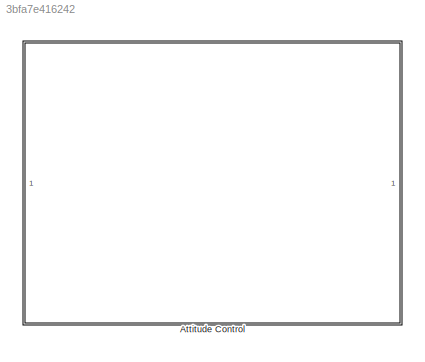
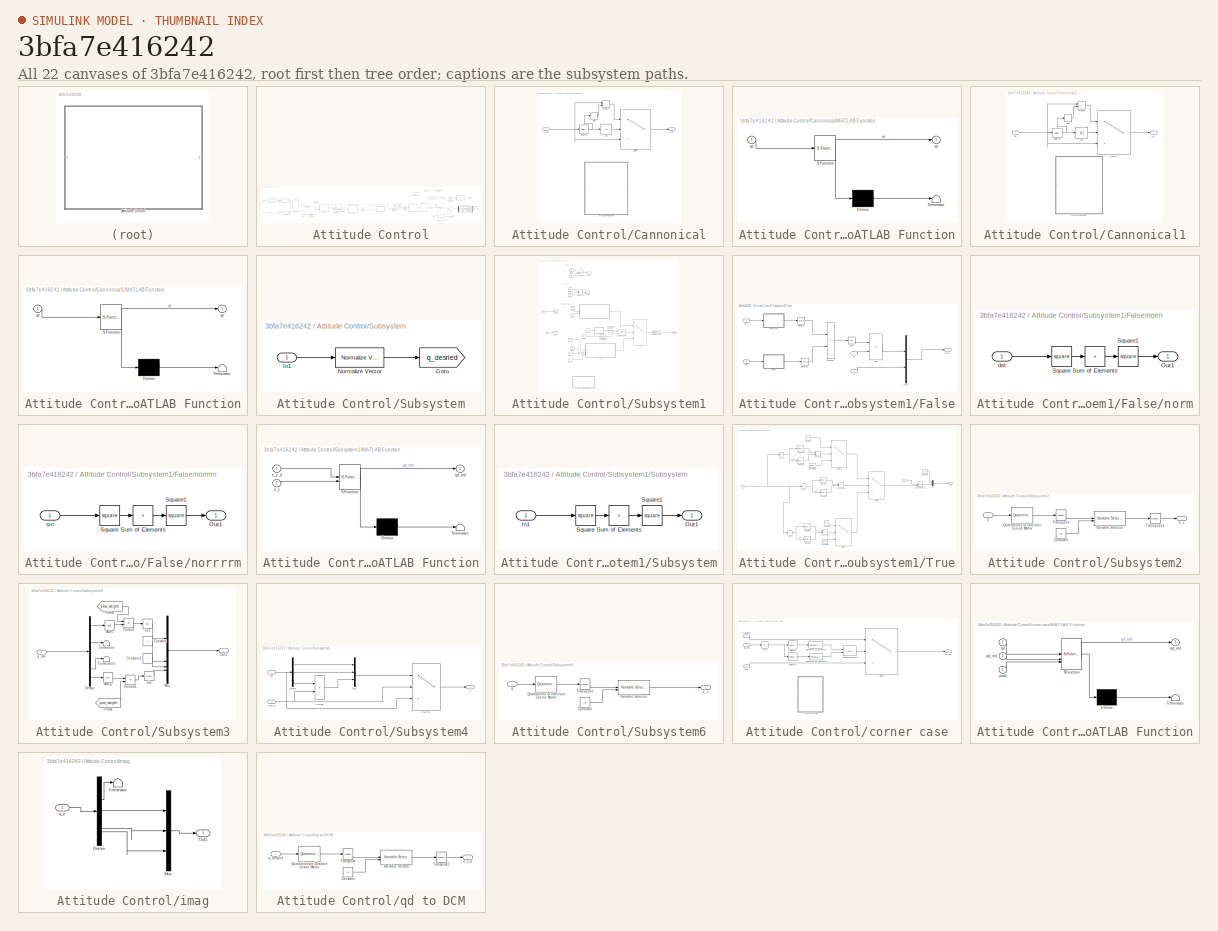
[diagram: thumbnail index - all 22 canvases of the model, root first then tree order]
MODEL slx_3bfa7e416242
KIND model
CONFIG AbsTol = auto
CONFIG EnableMultiTasking = off
CONFIG FixedStep = auto
CONFIG MaxStep = auto
CONFIG MinStep = auto
CONFIG RelTol = 1e-3
CONFIG SampleTimeConstraint = Unconstrained
CONFIG SolverName = VariableStepAuto
CONFIG StartTime = 0.0
CONFIG StopTime = 10.0
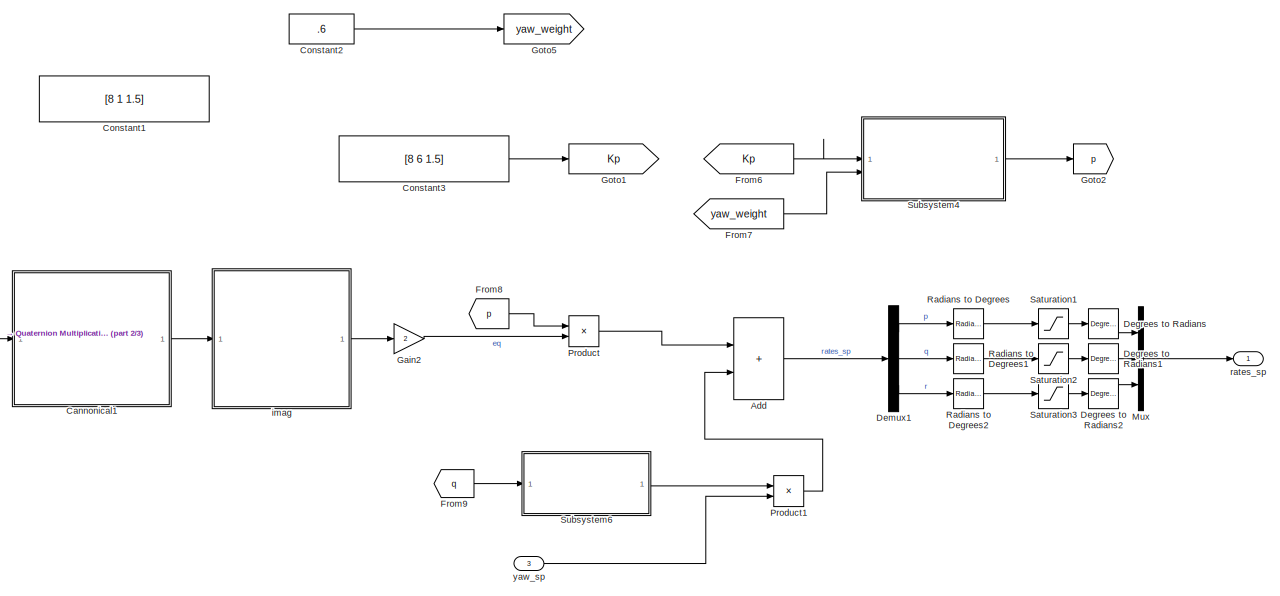
[diagram: Attitude Control - part 1/3, right side, full height]
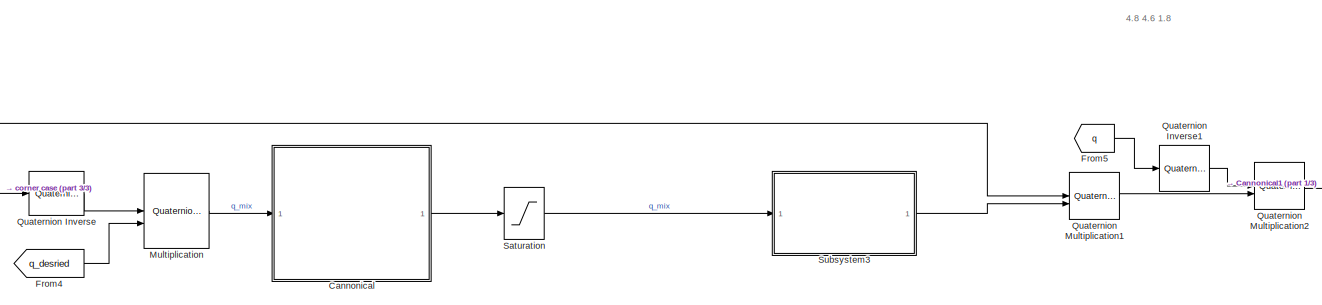
[diagram: Attitude Control - part 2/3, central region]
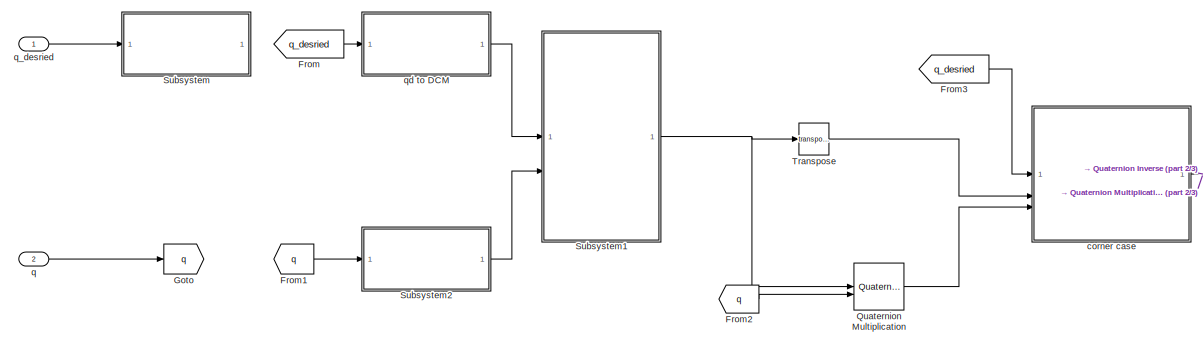
[diagram: Attitude Control - part 3/3, middle left region]
BLOCK [SubSystem] Attitude Control
BLOCK [Sum] Attitude Control/Add
  IconShape = rectangular
BLOCK [SubSystem] Attitude Control/Cannonical
BLOCK [Abs] Attitude Control/Cannonical/Abs
  SaturateOnIntegerOverflow = off
BLOCK [SubSystem] Attitude Control/Cannonical/MATLAB Function
  Commented = on
  ErrorFcn = Stateflow.Translate.translate
  PermitHierarchicalResolution = ExplicitOnly
  SFBlockType = MATLAB Function
  TreatAsAtomicUnit = on
BLOCK [Demux] Attitude Control/Cannonical/MATLAB Function/ Demux 
  Outputs = 1
BLOCK [S-Function] Attitude Control/Cannonical/MATLAB Function/ SFunction 
  EnableBusSupport = off
  FunctionName = sf_sfun
  PortCounts = [1 2]
  SFcnIsStateOwnerBlock = off
  SFunctionDeploymentMode = off
  Tag = Stateflow S-Function 8
BLOCK [Terminator] Attitude Control/Cannonical/MATLAB Function/ Terminator 
BLOCK [Outport] Attitude Control/Cannonical/MATLAB Function/qe
BLOCK [Inport] Attitude Control/Cannonical/MATLAB Function/qe 
BLOCK [Outport] Attitude Control/Cannonical/Out1
BLOCK [Product] Attitude Control/Cannonical/Product
BLOCK [Selector] Attitude Control/Cannonical/Selector
  IndexOptions = Index vector (dialog)
  Indices = [1]
  InputPortWidth = 4
  OutputSizes = 1
BLOCK [Signum] Attitude Control/Cannonical/Sign
BLOCK [Switch] Attitude Control/Cannonical/Switch
  Criteria = u2 > Threshold
  InputSameDT = off
  SaturateOnIntegerOverflow = off
  Threshold = 1e-5
BLOCK [Inport] Attitude Control/Cannonical/q_mix 
BLOCK [SubSystem] Attitude Control/Cannonical1
BLOCK [Abs] Attitude Control/Cannonical1/Abs
  SaturateOnIntegerOverflow = off
BLOCK [SubSystem] Attitude Control/Cannonical1/MATLAB Function
  Commented = on
  ErrorFcn = Stateflow.Translate.translate
  PermitHierarchicalResolution = ExplicitOnly
  SFBlockType = MATLAB Function
  TreatAsAtomicUnit = on
BLOCK [Demux] Attitude Control/Cannonical1/MATLAB Function/ Demux 
  Outputs = 1
BLOCK [S-Function] Attitude Control/Cannonical1/MATLAB Function/ SFunction 
  EnableBusSupport = off
  FunctionName = sf_sfun
  PortCounts = [1 2]
  SFcnIsStateOwnerBlock = off
  SFunctionDeploymentMode = off
  Tag = Stateflow S-Function 7
BLOCK [Terminator] Attitude Control/Cannonical1/MATLAB Function/ Terminator 
BLOCK [Outport] Attitude Control/Cannonical1/MATLAB Function/qe
BLOCK [Inport] Attitude Control/Cannonical1/MATLAB Function/qe 
BLOCK [Product] Attitude Control/Cannonical1/Product
BLOCK [Selector] Attitude Control/Cannonical1/Selector
  IndexOptions = Index vector (dialog)
  Indices = [1]
  InputPortWidth = 4
  OutputSizes = 1
BLOCK [Signum] Attitude Control/Cannonical1/Sign
BLOCK [Switch] Attitude Control/Cannonical1/Switch
  Criteria = u2 > Threshold
  InputSameDT = off
  SaturateOnIntegerOverflow = off
  Threshold = 1e-5
BLOCK [Outport] Attitude Control/Cannonical1/q_e
BLOCK [Inport] Attitude Control/Cannonical1/qe 
BLOCK [Constant] Attitude Control/Constant1
  Value = [8 1 1.5]
BLOCK [Constant] Attitude Control/Constant2
  Value = .6
BLOCK [Constant] Attitude Control/Constant3
  Value = [8 6 1.5]
BLOCK [Reference] Attitude Control/Degrees to Radians  REF=simulink_extras/Transformations/Degrees to
Radians
  SourceBlock = simulink_extras/Transformations/Degrees to\nRadians
  SourceType = DegreesToRadians
BLOCK [Reference] Attitude Control/Degrees to Radians1  REF=simulink_extras/Transformations/Degrees to
Radians
  SourceBlock = simulink_extras/Transformations/Degrees to\nRadians
  SourceType = DegreesToRadians
BLOCK [Reference] Attitude Control/Degrees to Radians2  REF=simulink_extras/Transformations/Degrees to
Radians
  SourceBlock = simulink_extras/Transformations/Degrees to\nRadians
  SourceType = DegreesToRadians
BLOCK [Demux] Attitude Control/Demux1
  Outputs = 3
BLOCK [From] Attitude Control/From
  GotoTag = q_desried
  TagVisibility = global
BLOCK [From] Attitude Control/From1
  GotoTag = q
  TagVisibility = global
BLOCK [From] Attitude Control/From2
  GotoTag = q
  TagVisibility = global
BLOCK [From] Attitude Control/From3
  GotoTag = q_desried
  TagVisibility = global
BLOCK [From] Attitude Control/From4
  GotoTag = q_desried
  TagVisibility = global
BLOCK [From] Attitude Control/From5
  GotoTag = q
  TagVisibility = global
BLOCK [From] Attitude Control/From6
  GotoTag = Kp
BLOCK [From] Attitude Control/From7
  GotoTag = yaw_weight
  TagVisibility = global
BLOCK [From] Attitude Control/From8
  GotoTag = p
BLOCK [From] Attitude Control/From9
  GotoTag = q
  TagVisibility = global
BLOCK [Gain] Attitude Control/Gain2
  Gain = 2
BLOCK [Goto] Attitude Control/Goto
  GotoTag = q
  TagVisibility = global
BLOCK [Goto] Attitude Control/Goto1
  GotoTag = Kp
BLOCK [Goto] Attitude Control/Goto2
  GotoTag = p
BLOCK [Goto] Attitude Control/Goto5
  GotoTag = yaw_weight
  TagVisibility = global
BLOCK [Reference] Attitude Control/Multiplication  REF=aerolibutil/Quaternion
Multiplication
  SourceBlock = aerolibutil/Quaternion\nMultiplication
  SourceType = Quaternion Multiplication
BLOCK [Mux] Attitude Control/Mux
  DisplayOption = bar
  Inputs = 3
BLOCK [Product] Attitude Control/Product
BLOCK [Product] Attitude Control/Product1
BLOCK [Reference] Attitude Control/Quaternion Inverse  REF=aerolibutil/Quaternion
Inverse
  SourceBlock = aerolibutil/Quaternion\nInverse
  SourceType = Quaternion Inverse
BLOCK [Reference] Attitude Control/Quaternion Inverse1  REF=aerolibutil/Quaternion
Inverse
  SourceBlock = aerolibutil/Quaternion\nInverse
  SourceType = Quaternion Inverse
BLOCK [Reference] Attitude Control/Quaternion Multiplication  REF=aerolibutil/Quaternion
Multiplication
  SourceBlock = aerolibutil/Quaternion\nMultiplication
  SourceType = Quaternion Multiplication
BLOCK [Reference] Attitude Control/Quaternion Multiplication1  REF=aerolibutil/Quaternion
Multiplication
  SourceBlock = aerolibutil/Quaternion\nMultiplication
  SourceType = Quaternion Multiplication
BLOCK [Reference] Attitude Control/Quaternion Multiplication2  REF=aerolibutil/Quaternion
Multiplication
  SourceBlock = aerolibutil/Quaternion\nMultiplication
  SourceType = Quaternion Multiplication
BLOCK [Reference] Attitude Control/Radians to Degrees  REF=simulink_extras/Transformations/Radians
to Degrees
  SourceBlock = simulink_extras/Transformations/Radians\nto Degrees
  SourceType = RadiansToDegrees
BLOCK [Reference] Attitude Control/Radians to Degrees1  REF=simulink_extras/Transformations/Radians
to Degrees
  SourceBlock = simulink_extras/Transformations/Radians\nto Degrees
  SourceType = RadiansToDegrees
BLOCK [Reference] Attitude Control/Radians to Degrees2  REF=simulink_extras/Transformations/Radians
to Degrees
  SourceBlock = simulink_extras/Transformations/Radians\nto Degrees
  SourceType = RadiansToDegrees
BLOCK [Saturate] Attitude Control/Saturation
  LowerLimit = -1
  UpperLimit = 1
BLOCK [Saturate] Attitude Control/Saturation1
  LowerLimit = -220
  UpperLimit = 220
BLOCK [Saturate] Attitude Control/Saturation2
  LowerLimit = -220
  UpperLimit = 220
BLOCK [Saturate] Attitude Control/Saturation3
  LowerLimit = -200
  UpperLimit = 200
BLOCK [SubSystem] Attitude Control/Subsystem
BLOCK [Goto] Attitude Control/Subsystem/Goto
  GotoTag = q_desried
  TagVisibility = global
BLOCK [Inport] Attitude Control/Subsystem/In1
BLOCK [Reference] Attitude Control/Subsystem/Normalize Vector  REF=vrlib/Utilities/Normalize Vector
  SourceBlock = vrlib/Utilities/Normalize Vector
  SourceType = Normalize Vector
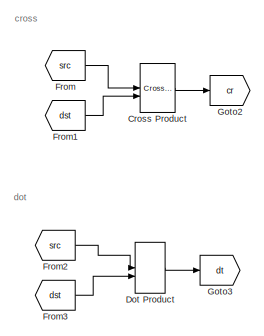
[diagram: Attitude Control/Subsystem1 - part 1/2, top left region]
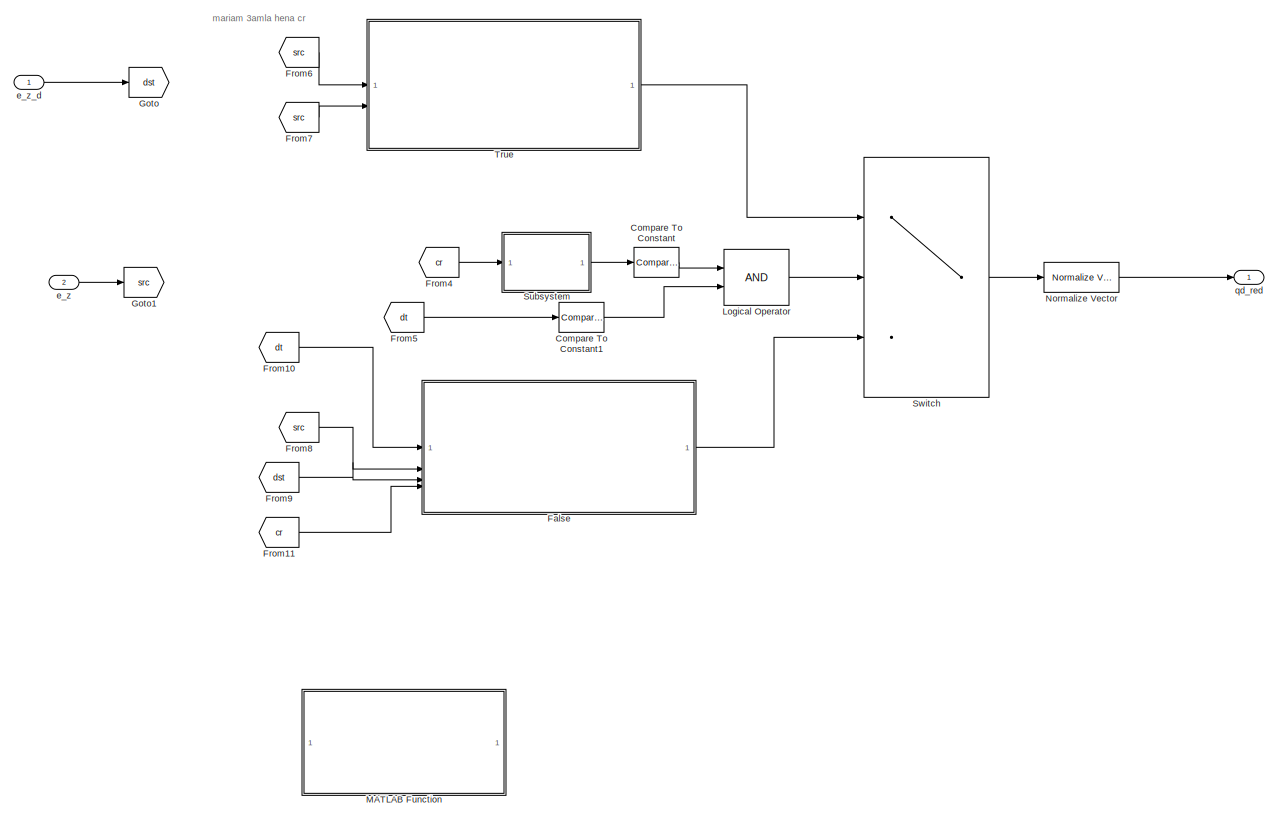
[diagram: Attitude Control/Subsystem1 - part 2/2, full width, middle band]
BLOCK [SubSystem] Attitude Control/Subsystem1
BLOCK [Reference] Attitude Control/Subsystem1/Compare To Constant  REF=simulink/Logic and Bit
Operations/Compare
To Constant
  SourceBlock = simulink/Logic and Bit\nOperations/Compare\nTo Constant
  SourceType = Compare To Constant
BLOCK [Reference] Attitude Control/Subsystem1/Compare To Constant1  REF=simulink/Logic and Bit
Operations/Compare
To Constant
  SourceBlock = simulink/Logic and Bit\nOperations/Compare\nTo Constant
  SourceType = Compare To Constant
BLOCK [Reference] Attitude Control/Subsystem1/Cross Product  REF=vrlib/Utilities/Cross Product
  SourceBlock = vrlib/Utilities/Cross Product
  SourceType = Cross Product
BLOCK [DotProduct] Attitude Control/Subsystem1/Dot Product
  OutDataTypeStr = Inherit: Inherit via internal rule
BLOCK [SubSystem] Attitude Control/Subsystem1/False
BLOCK [Sum] Attitude Control/Subsystem1/False/Add
  IconShape = rectangular
BLOCK [Mux] Attitude Control/Subsystem1/False/Mux
  DisplayOption = bar
  Inputs = 2
BLOCK [Outport] Attitude Control/Subsystem1/False/Out1
BLOCK [Product] Attitude Control/Subsystem1/False/Product
BLOCK [Sqrt] Attitude Control/Subsystem1/False/Sqrt
BLOCK [Math] Attitude Control/Subsystem1/False/Square
  Operator = square
BLOCK [Math] Attitude Control/Subsystem1/False/Square1
  Operator = square
BLOCK [Inport] Attitude Control/Subsystem1/False/cr
  Port = 4
BLOCK [Inport] Attitude Control/Subsystem1/False/dst
  Port = 3
BLOCK [Inport] Attitude Control/Subsystem1/False/dt
BLOCK [SubSystem] Attitude Control/Subsystem1/False/norm
BLOCK [Outport] Attitude Control/Subsystem1/False/norm/Out1
BLOCK [Math] Attitude Control/Subsystem1/False/norm/Square
  Operator = square
BLOCK [Math] Attitude Control/Subsystem1/False/norm/Square1
  Operator = square
BLOCK [Sum] Attitude Control/Subsystem1/False/norm/Sum of Elements
  IconShape = rectangular
  Inputs = +
BLOCK [Inport] Attitude Control/Subsystem1/False/norm/dst
BLOCK [SubSystem] Attitude Control/Subsystem1/False/norrrrm
BLOCK [Outport] Attitude Control/Subsystem1/False/norrrrm/Out1
BLOCK [Math] Attitude Control/Subsystem1/False/norrrrm/Square
  Operator = square
BLOCK [Math] Attitude Control/Subsystem1/False/norrrrm/Square1
  Operator = square
BLOCK [Sum] Attitude Control/Subsystem1/False/norrrrm/Sum of Elements
  IconShape = rectangular
  Inputs = +
BLOCK [Inport] Attitude Control/Subsystem1/False/norrrrm/src
BLOCK [Inport] Attitude Control/Subsystem1/False/src
  Port = 2
BLOCK [From] Attitude Control/Subsystem1/From
  GotoTag = src
BLOCK [From] Attitude Control/Subsystem1/From1
  GotoTag = dst
BLOCK [From] Attitude Control/Subsystem1/From10
  GotoTag = dt
BLOCK [From] Attitude Control/Subsystem1/From11
  GotoTag = cr
BLOCK [From] Attitude Control/Subsystem1/From2
  GotoTag = src
BLOCK [From] Attitude Control/Subsystem1/From3
  GotoTag = dst
BLOCK [From] Attitude Control/Subsystem1/From4
  GotoTag = cr
BLOCK [From] Attitude Control/Subsystem1/From5
  GotoTag = dt
BLOCK [From] Attitude Control/Subsystem1/From6
  GotoTag = src
BLOCK [From] Attitude Control/Subsystem1/From7
  GotoTag = src
BLOCK [From] Attitude Control/Subsystem1/From8
  GotoTag = src
BLOCK [From] Attitude Control/Subsystem1/From9
  GotoTag = dst
BLOCK [Goto] Attitude Control/Subsystem1/Goto
  GotoTag = dst
BLOCK [Goto] Attitude Control/Subsystem1/Goto1
  GotoTag = src
BLOCK [Goto] Attitude Control/Subsystem1/Goto2
  GotoTag = cr
BLOCK [Goto] Attitude Control/Subsystem1/Goto3
  GotoTag = dt
BLOCK [Logic] Attitude Control/Subsystem1/Logical Operator
  AllPortsSameDT = off
  OutDataTypeStr = boolean
BLOCK [SubSystem] Attitude Control/Subsystem1/MATLAB Function
  Commented = on
  ErrorFcn = Stateflow.Translate.translate
  PermitHierarchicalResolution = ExplicitOnly
  SFBlockType = MATLAB Function
  TreatAsAtomicUnit = on
BLOCK [Demux] Attitude Control/Subsystem1/MATLAB Function/ Demux 
  Outputs = 1
BLOCK [S-Function] Attitude Control/Subsystem1/MATLAB Function/ SFunction 
  EnableBusSupport = off
  FunctionName = sf_sfun
  PortCounts = [2 2]
  SFcnIsStateOwnerBlock = off
  SFunctionDeploymentMode = off
  Tag = Stateflow S-Function 46
BLOCK [Terminator] Attitude Control/Subsystem1/MATLAB Function/ Terminator 
BLOCK [Inport] Attitude Control/Subsystem1/MATLAB Function/e_z
  Port = 2
BLOCK [Inport] Attitude Control/Subsystem1/MATLAB Function/e_z_d
BLOCK [Outport] Attitude Control/Subsystem1/MATLAB Function/qd_red
BLOCK [Reference] Attitude Control/Subsystem1/Normalize Vector  REF=vrlib/Utilities/Normalize Vector
  SourceBlock = vrlib/Utilities/Normalize Vector
  SourceType = Normalize Vector
BLOCK [SubSystem] Attitude Control/Subsystem1/Subsystem
BLOCK [Inport] Attitude Control/Subsystem1/Subsystem/In1
BLOCK [Outport] Attitude Control/Subsystem1/Subsystem/Out1
BLOCK [Math] Attitude Control/Subsystem1/Subsystem/Square
  Operator = square
BLOCK [Math] Attitude Control/Subsystem1/Subsystem/Square1
  Operator = square
BLOCK [Sum] Attitude Control/Subsystem1/Subsystem/Sum of Elements
  IconShape = rectangular
  Inputs = +
BLOCK [Switch] Attitude Control/Subsystem1/Switch
  Criteria = u2 ~= 0
  InputSameDT = off
  SaturateOnIntegerOverflow = off
BLOCK [SubSystem] Attitude Control/Subsystem1/True
BLOCK [Abs] Attitude Control/Subsystem1/True/Abs
  SaturateOnIntegerOverflow = off
BLOCK [Abs] Attitude Control/Subsystem1/True/Abs1
  SaturateOnIntegerOverflow = off
BLOCK [Abs] Attitude Control/Subsystem1/True/Abs2
  SaturateOnIntegerOverflow = off
BLOCK [Constant] Attitude Control/Subsystem1/True/Constant
  Value = [1 0 0]
BLOCK [Constant] Attitude Control/Subsystem1/True/Constant1
  Value = [ 0 0 1]
BLOCK [Constant] Attitude Control/Subsystem1/True/Constant2
  Value = [0 1 0]
BLOCK [Constant] Attitude Control/Subsystem1/True/Constant3
  Value = [0 0 1]
BLOCK [Constant] Attitude Control/Subsystem1/True/Constant4
  Value = 0
BLOCK [Reference] Attitude Control/Subsystem1/True/Cross Product1  REF=vrlib/Utilities/Cross Product
  SourceBlock = vrlib/Utilities/Cross Product
  SourceType = Cross Product
BLOCK [RelationalOperator] Attitude Control/Subsystem1/True/Less Than
  InputSameDT = off
  Operator = <
  OutDataTypeStr = boolean
  RndMeth = Simplest
BLOCK [RelationalOperator] Attitude Control/Subsystem1/True/Less Than1
  InputSameDT = off
  Operator = <
  OutDataTypeStr = boolean
  RndMeth = Simplest
BLOCK [RelationalOperator] Attitude Control/Subsystem1/True/Less Than2
  InputSameDT = off
  Operator = <
  OutDataTypeStr = boolean
  RndMeth = Simplest
BLOCK [Mux] Attitude Control/Subsystem1/True/Mux
  DisplayOption = bar
  Inputs = 2
BLOCK [Outport] Attitude Control/Subsystem1/True/Out1
BLOCK [Selector] Attitude Control/Subsystem1/True/Selector
  IndexOptions = Index vector (dialog)
  Indices = [1]
  InputPortWidth = 3
  OutputSizes = 1
BLOCK [Selector] Attitude Control/Subsystem1/True/Selector1
  IndexOptions = Index vector (dialog)
  Indices = [2]
  InputPortWidth = 3
  OutputSizes = 1
BLOCK [Selector] Attitude Control/Subsystem1/True/Selector2
  IndexOptions = Index vector (dialog)
  Indices = [1]
  InputPortWidth = 3
  OutputSizes = 1
BLOCK [Selector] Attitude Control/Subsystem1/True/Selector3
  IndexOptions = Index vector (dialog)
  Indices = [3]
  InputPortWidth = 3
  OutputSizes = 1
BLOCK [Selector] Attitude Control/Subsystem1/True/Selector4
  IndexOptions = Index vector (dialog)
  Indices = [2]
  InputPortWidth = 3
  OutputSizes = 1
BLOCK [Selector] Attitude Control/Subsystem1/True/Selector5
  IndexOptions = Index vector (dialog)
  Indices = [3]
  InputPortWidth = 3
  OutputSizes = 1
BLOCK [Switch] Attitude Control/Subsystem1/True/Switch
  Criteria = u2 ~= 0
  InputSameDT = off
  SaturateOnIntegerOverflow = off
BLOCK [Switch] Attitude Control/Subsystem1/True/Switch1
  Criteria = u2 ~= 0
  InputSameDT = off
  SaturateOnIntegerOverflow = off
BLOCK [Switch] Attitude Control/Subsystem1/True/Switch2
  Criteria = u2 ~= 0
  InputSameDT = off
  SaturateOnIntegerOverflow = off
BLOCK [Inport] Attitude Control/Subsystem1/True/cr
BLOCK [Inport] Attitude Control/Subsystem1/True/src
  Port = 2
BLOCK [Inport] Attitude Control/Subsystem1/e_z
  Port = 2
BLOCK [Inport] Attitude Control/Subsystem1/e_z_d
BLOCK [Outport] Attitude Control/Subsystem1/qd_red
BLOCK [SubSystem] Attitude Control/Subsystem2
BLOCK [Constant] Attitude Control/Subsystem2/Constant
  Value = [3]
BLOCK [Reference] Attitude Control/Subsystem2/Quaternions to Direction Cosine Matrix  REF=sharedtransform/Quaternions to 
Direction Cosine Matrix
  LibrarySourceBlock = aerolibtransform2/Quaternions to \nDirection Cosine Matrix
  SourceBlock = sharedtransform/Quaternions to \nDirection Cosine Matrix
  SourceType = Quaternion2DCM
BLOCK [Math] Attitude Control/Subsystem2/Transpose
  Operator = transpose
BLOCK [Math] Attitude Control/Subsystem2/Transpose1
  Operator = transpose
BLOCK [Reference] Attitude Control/Subsystem2/Variable Selector  REF=dspindex/Variable
Selector
  SourceBlock = dspindex/Variable\nSelector
  SourceType = Variable Selector
BLOCK [Outport] Attitude Control/Subsystem2/e_z
BLOCK [Inport] Attitude Control/Subsystem2/q
BLOCK [SubSystem] Attitude Control/Subsystem3
BLOCK [Trigonometry] Attitude Control/Subsystem3/Acos
  Operator = acos
BLOCK [Trigonometry] Attitude Control/Subsystem3/Acos1
  Operator = asin
BLOCK [Constant] Attitude Control/Subsystem3/Constant
  Value = 0
BLOCK [Constant] Attitude Control/Subsystem3/Constant1
  Value = 0
BLOCK [Trigonometry] Attitude Control/Subsystem3/Cos
  Operator = cos
BLOCK [Demux] Attitude Control/Subsystem3/Demux
BLOCK [From] Attitude Control/Subsystem3/From5
  GotoTag = yaw_weight
  TagVisibility = global
BLOCK [From] Attitude Control/Subsystem3/From6
  GotoTag = yaw_weight
  TagVisibility = global
BLOCK [Mux] Attitude Control/Subsystem3/Mux
  DisplayOption = bar
BLOCK [Outport] Attitude Control/Subsystem3/Out1
BLOCK [Product] Attitude Control/Subsystem3/Product
BLOCK [Product] Attitude Control/Subsystem3/Product1
BLOCK [Trigonometry] Attitude Control/Subsystem3/Sin
BLOCK [Terminator] Attitude Control/Subsystem3/Terminator
BLOCK [Terminator] Attitude Control/Subsystem3/Terminator1
BLOCK [Inport] Attitude Control/Subsystem3/q_mix
BLOCK [SubSystem] Attitude Control/Subsystem4
BLOCK [Demux] Attitude Control/Subsystem4/Demux
  Outputs = 3
BLOCK [Product] Attitude Control/Subsystem4/Divide
  Inputs = */
BLOCK [Mux] Attitude Control/Subsystem4/Mux
  DisplayOption = bar
  Inputs = 3
BLOCK [Switch] Attitude Control/Subsystem4/Switch
  Criteria = u2 > Threshold
  InputSameDT = off
  SaturateOnIntegerOverflow = off
  Threshold = 1e-4
BLOCK [Inport] Attitude Control/Subsystem4/kp
BLOCK [Outport] Attitude Control/Subsystem4/p
BLOCK [Inport] Attitude Control/Subsystem4/yaw_w
  Port = 2
BLOCK [SubSystem] Attitude Control/Subsystem6
BLOCK [Constant] Attitude Control/Subsystem6/Constant
  Value = [3]
BLOCK [Reference] Attitude Control/Subsystem6/Quaternions to Direction Cosine Matrix  REF=sharedtransform/Quaternions to 
Direction Cosine Matrix
  LibrarySourceBlock = aerolibtransform2/Quaternions to \nDirection Cosine Matrix
  SourceBlock = sharedtransform/Quaternions to \nDirection Cosine Matrix
  SourceType = Quaternion2DCM
BLOCK [Math] Attitude Control/Subsystem6/Transpose
  Operator = transpose
BLOCK [Reference] Attitude Control/Subsystem6/Variable Selector  REF=dspindex/Variable
Selector
  SourceBlock = dspindex/Variable\nSelector
  SourceType = Variable Selector
BLOCK [Outport] Attitude Control/Subsystem6/e_z
BLOCK [Inport] Attitude Control/Subsystem6/q
BLOCK [Math] Attitude Control/Transpose
  Operator = transpose
BLOCK [SubSystem] Attitude Control/corner case
BLOCK [Abs] Attitude Control/corner case/Abs
  SaturateOnIntegerOverflow = off
BLOCK [Reference] Attitude Control/corner case/Compare To Constant  REF=simulink/Logic and Bit
Operations/Compare
To Constant
  SourceBlock = simulink/Logic and Bit\nOperations/Compare\nTo Constant
  SourceType = Compare To Constant
BLOCK [Reference] Attitude Control/corner case/Compare To Constant1  REF=simulink/Logic and Bit
Operations/Compare
To Constant
  SourceBlock = simulink/Logic and Bit\nOperations/Compare\nTo Constant
  SourceType = Compare To Constant
BLOCK [Logic] Attitude Control/corner case/Logical Operator
  AllPortsSameDT = off
  Operator = OR
  OutDataTypeStr = boolean
BLOCK [SubSystem] Attitude Control/corner case/MATLAB Function
  Commented = on
  ErrorFcn = Stateflow.Translate.translate
  PermitHierarchicalResolution = ExplicitOnly
  SFBlockType = MATLAB Function
  TreatAsAtomicUnit = on
BLOCK [Demux] Attitude Control/corner case/MATLAB Function/ Demux 
  Outputs = 1
BLOCK [S-Function] Attitude Control/corner case/MATLAB Function/ SFunction 
  EnableBusSupport = off
  FunctionName = sf_sfun
  PortCounts = [3 2]
  SFcnIsStateOwnerBlock = off
  SFunctionDeploymentMode = off
  Tag = Stateflow S-Function 47
BLOCK [Terminator] Attitude Control/corner case/MATLAB Function/ Terminator 
BLOCK [Inport] Attitude Control/corner case/MATLAB Function/prod
  Port = 3
BLOCK [Inport] Attitude Control/corner case/MATLAB Function/qd
BLOCK [Outport] Attitude Control/corner case/MATLAB Function/qd_red
BLOCK [Inport] Attitude Control/corner case/MATLAB Function/qd_red 
  Port = 2
BLOCK [Selector] Attitude Control/corner case/Selector
  IndexOptions = Index vector (dialog)
  Indices = [2]
  InputPortWidth = 4
  OutputSizes = 1
BLOCK [Selector] Attitude Control/corner case/Selector1
  IndexOptions = Index vector (dialog)
  Indices = [3]
  InputPortWidth = 4
  OutputSizes = 1
BLOCK [Switch] Attitude Control/corner case/Switch
  Criteria = u2 > Threshold
  InputSameDT = off
  SaturateOnIntegerOverflow = off
BLOCK [Inport] Attitude Control/corner case/mult
  Port = 3
BLOCK [Inport] Attitude Control/corner case/q_desired
BLOCK [Inport] Attitude Control/corner case/qd_red
  Port = 2
BLOCK [Outport] Attitude Control/corner case/qd_redf
BLOCK [SubSystem] Attitude Control/imag
BLOCK [Demux] Attitude Control/imag/Demux
BLOCK [Mux] Attitude Control/imag/Mux
  DisplayOption = bar
  Inputs = 3
BLOCK [Outport] Attitude Control/imag/Out1
BLOCK [Terminator] Attitude Control/imag/Terminator
BLOCK [Inport] Attitude Control/imag/q_e
BLOCK [Inport] Attitude Control/q
  Port = 2
BLOCK [Inport] Attitude Control/q_desried
BLOCK [SubSystem] Attitude Control/qd to DCM
BLOCK [Constant] Attitude Control/qd to DCM/Constant
  Value = [3]
BLOCK [Reference] Attitude Control/qd to DCM/Quaternions to Direction Cosine Matrix  REF=sharedtransform/Quaternions to 
Direction Cosine Matrix
  LibrarySourceBlock = aerolibtransform2/Quaternions to \nDirection Cosine Matrix
  SourceBlock = sharedtransform/Quaternions to \nDirection Cosine Matrix
  SourceType = Quaternion2DCM
BLOCK [Math] Attitude Control/qd to DCM/Transpose
  Operator = transpose
BLOCK [Math] Attitude Control/qd to DCM/Transpose1
  Operator = transpose
BLOCK [Reference] Attitude Control/qd to DCM/Variable Selector  REF=dspindex/Variable
Selector
  SourceBlock = dspindex/Variable\nSelector
  SourceType = Variable Selector
BLOCK [Outport] Attitude Control/qd to DCM/e_z_d
BLOCK [Inport] Attitude Control/qd to DCM/q_desired
BLOCK [Outport] Attitude Control/rates_sp
BLOCK [Inport] Attitude Control/yaw_sp
  Port = 3
ANNOTATION Attitude Control: 4.8 4.6 1.8
ANNOTATION Attitude Control/Subsystem1: cross
ANNOTATION Attitude Control/Subsystem1: dot
ANNOTATION Attitude Control/Subsystem1: mariam 3amla hena cr
LINE Attitude Control/Add:1 -> Attitude Control/Demux1:1
LINE Attitude Control/Cannonical/Abs:1 -> Attitude Control/Cannonical/Switch:2
LINE Attitude Control/Cannonical/Product:1 -> Attitude Control/Cannonical/Switch:1
NET Attitude Control/Cannonical/Selector:1 -> Attitude Control/Cannonical/Abs:1, Attitude Control/Cannonical/Sign:1
LINE Attitude Control/Cannonical/Sign:1 -> Attitude Control/Cannonical/Product:2
LINE Attitude Control/Cannonical/Switch:1 -> Attitude Control/Cannonical/Out1:1
NET Attitude Control/Cannonical/q_mix :1 -> Attitude Control/Cannonical/Product:1, Attitude Control/Cannonical/Selector:1, Attitude Control/Cannonical/Switch:3
LINE Attitude Control/Cannonical1/Abs:1 -> Attitude Control/Cannonical1/Switch:2
LINE Attitude Control/Cannonical1/Product:1 -> Attitude Control/Cannonical1/Switch:1
NET Attitude Control/Cannonical1/Selector:1 -> Attitude Control/Cannonical1/Abs:1, Attitude Control/Cannonical1/Sign:1
LINE Attitude Control/Cannonical1/Sign:1 -> Attitude Control/Cannonical1/Product:2
LINE Attitude Control/Cannonical1/Switch:1 -> Attitude Control/Cannonical1/q_e:1
NET Attitude Control/Cannonical1/qe :1 -> Attitude Control/Cannonical1/Product:1, Attitude Control/Cannonical1/Selector:1, Attitude Control/Cannonical1/Switch:3
LINE Attitude Control/Cannonical1:1 -> Attitude Control/imag:1
LINE Attitude Control/Cannonical:1 -> Attitude Control/Saturation:1
LINE Attitude Control/Constant2:1 -> Attitude Control/Goto5:1
LINE Attitude Control/Constant3:1 -> Attitude Control/Goto1:1
LINE Attitude Control/Degrees to Radians1:1 -> Attitude Control/Mux:2
LINE Attitude Control/Degrees to Radians2:1 -> Attitude Control/Mux:3
LINE Attitude Control/Degrees to Radians:1 -> Attitude Control/Mux:1
LINE Attitude Control/Demux1:1 -> Attitude Control/Radians to Degrees:1
LINE Attitude Control/Demux1:2 -> Attitude Control/Radians to Degrees1:1
LINE Attitude Control/Demux1:3 -> Attitude Control/Radians to Degrees2:1
LINE Attitude Control/From1:1 -> Attitude Control/Subsystem2:1
LINE Attitude Control/From2:1 -> Attitude Control/Quaternion Multiplication:2
LINE Attitude Control/From3:1 -> Attitude Control/corner case:1
LINE Attitude Control/From4:1 -> Attitude Control/Multiplication:2
LINE Attitude Control/From5:1 -> Attitude Control/Quaternion Inverse1:1
LINE Attitude Control/From6:1 -> Attitude Control/Subsystem4:1
LINE Attitude Control/From7:1 -> Attitude Control/Subsystem4:2
LINE Attitude Control/From8:1 -> Attitude Control/Product:1
LINE Attitude Control/From9:1 -> Attitude Control/Subsystem6:1
LINE Attitude Control/From:1 -> Attitude Control/qd to DCM:1
LINE Attitude Control/Gain2:1 -> Attitude Control/Product:2
LINE Attitude Control/Multiplication:1 -> Attitude Control/Cannonical:1
LINE Attitude Control/Mux:1 -> Attitude Control/rates_sp:1
LINE Attitude Control/Product1:1 -> Attitude Control/Add:2
LINE Attitude Control/Product:1 -> Attitude Control/Add:1
LINE Attitude Control/Quaternion Inverse1:1 -> Attitude Control/Quaternion Multiplication2:1
LINE Attitude Control/Quaternion Inverse:1 -> Attitude Control/Multiplication:1
LINE Attitude Control/Quaternion Multiplication1:1 -> Attitude Control/Quaternion Multiplication2:2
LINE Attitude Control/Quaternion Multiplication2:1 -> Attitude Control/Cannonical1:1
LINE Attitude Control/Quaternion Multiplication:1 -> Attitude Control/corner case:3
LINE Attitude Control/Radians to Degrees1:1 -> Attitude Control/Saturation2:1
LINE Attitude Control/Radians to Degrees2:1 -> Attitude Control/Saturation3:1
LINE Attitude Control/Radians to Degrees:1 -> Attitude Control/Saturation1:1
LINE Attitude Control/Saturation1:1 -> Attitude Control/Degrees to Radians:1
LINE Attitude Control/Saturation2:1 -> Attitude Control/Degrees to Radians1:1
LINE Attitude Control/Saturation3:1 -> Attitude Control/Degrees to Radians2:1
LINE Attitude Control/Saturation:1 -> Attitude Control/Subsystem3:1
LINE Attitude Control/Subsystem/In1:1 -> Attitude Control/Subsystem/Normalize Vector:1
LINE Attitude Control/Subsystem/Normalize Vector:1 -> Attitude Control/Subsystem/Goto:1
LINE Attitude Control/Subsystem1/Compare To Constant1:1 -> Attitude Control/Subsystem1/Logical Operator:2
LINE Attitude Control/Subsystem1/Compare To Constant:1 -> Attitude Control/Subsystem1/Logical Operator:1
LINE Attitude Control/Subsystem1/Cross Product:1 -> Attitude Control/Subsystem1/Goto2:1
LINE Attitude Control/Subsystem1/Dot Product:1 -> Attitude Control/Subsystem1/Goto3:1
LINE Attitude Control/Subsystem1/False/Add:1 -> Attitude Control/Subsystem1/False/Mux:1
LINE Attitude Control/Subsystem1/False/Mux:1 -> Attitude Control/Subsystem1/False/Out1:1
LINE Attitude Control/Subsystem1/False/Product:1 -> Attitude Control/Subsystem1/False/Sqrt:1
LINE Attitude Control/Subsystem1/False/Sqrt:1 -> Attitude Control/Subsystem1/False/Add:1
LINE Attitude Control/Subsystem1/False/Square1:1 -> Attitude Control/Subsystem1/False/Product:2
LINE Attitude Control/Subsystem1/False/Square:1 -> Attitude Control/Subsystem1/False/Product:1
LINE Attitude Control/Subsystem1/False/cr:1 -> Attitude Control/Subsystem1/False/Mux:2
LINE Attitude Control/Subsystem1/False/dst:1 -> Attitude Control/Subsystem1/False/norm:1
LINE Attitude Control/Subsystem1/False/dt:1 -> Attitude Control/Subsystem1/False/Add:2
LINE Attitude Control/Subsystem1/False/norm/Square1:1 -> Attitude Control/Subsystem1/False/norm/Out1:1
LINE Attitude Control/Subsystem1/False/norm/Square:1 -> Attitude Control/Subsystem1/False/norm/Sum of Elements:1
LINE Attitude Control/Subsystem1/False/norm/Sum of Elements:1 -> Attitude Control/Subsystem1/False/norm/Square1:1
LINE Attitude Control/Subsystem1/False/norm/dst:1 -> Attitude Control/Subsystem1/False/norm/Square:1
LINE Attitude Control/Subsystem1/False/norm:1 -> Attitude Control/Subsystem1/False/Square1:1
LINE Attitude Control/Subsystem1/False/norrrrm/Square1:1 -> Attitude Control/Subsystem1/False/norrrrm/Out1:1
LINE Attitude Control/Subsystem1/False/norrrrm/Square:1 -> Attitude Control/Subsystem1/False/norrrrm/Sum of Elements:1
LINE Attitude Control/Subsystem1/False/norrrrm/Sum of Elements:1 -> Attitude Control/Subsystem1/False/norrrrm/Square1:1
LINE Attitude Control/Subsystem1/False/norrrrm/src:1 -> Attitude Control/Subsystem1/False/norrrrm/Square:1
LINE Attitude Control/Subsystem1/False/norrrrm:1 -> Attitude Control/Subsystem1/False/Square:1
LINE Attitude Control/Subsystem1/False/src:1 -> Attitude Control/Subsystem1/False/norrrrm:1
LINE Attitude Control/Subsystem1/False:1 -> Attitude Control/Subsystem1/Switch:3
LINE Attitude Control/Subsystem1/From10:1 -> Attitude Control/Subsystem1/False:1
LINE Attitude Control/Subsystem1/From11:1 -> Attitude Control/Subsystem1/False:4
LINE Attitude Control/Subsystem1/From1:1 -> Attitude Control/Subsystem1/Cross Product:2
LINE Attitude Control/Subsystem1/From2:1 -> Attitude Control/Subsystem1/Dot Product:1
LINE Attitude Control/Subsystem1/From3:1 -> Attitude Control/Subsystem1/Dot Product:2
LINE Attitude Control/Subsystem1/From4:1 -> Attitude Control/Subsystem1/Subsystem:1
LINE Attitude Control/Subsystem1/From5:1 -> Attitude Control/Subsystem1/Compare To Constant1:1
LINE Attitude Control/Subsystem1/From6:1 -> Attitude Control/Subsystem1/True:1
LINE Attitude Control/Subsystem1/From7:1 -> Attitude Control/Subsystem1/True:2
LINE Attitude Control/Subsystem1/From8:1 -> Attitude Control/Subsystem1/False:2
LINE Attitude Control/Subsystem1/From9:1 -> Attitude Control/Subsystem1/False:3
LINE Attitude Control/Subsystem1/From:1 -> Attitude Control/Subsystem1/Cross Product:1
LINE Attitude Control/Subsystem1/Logical Operator:1 -> Attitude Control/Subsystem1/Switch:2
LINE Attitude Control/Subsystem1/Normalize Vector:1 -> Attitude Control/Subsystem1/qd_red:1
LINE Attitude Control/Subsystem1/Subsystem/In1:1 -> Attitude Control/Subsystem1/Subsystem/Square:1
LINE Attitude Control/Subsystem1/Subsystem/Square1:1 -> Attitude Control/Subsystem1/Subsystem/Out1:1
LINE Attitude Control/Subsystem1/Subsystem/Square:1 -> Attitude Control/Subsystem1/Subsystem/Sum of Elements:1
LINE Attitude Control/Subsystem1/Subsystem/Sum of Elements:1 -> Attitude Control/Subsystem1/Subsystem/Square1:1
LINE Attitude Control/Subsystem1/Subsystem:1 -> Attitude Control/Subsystem1/Compare To Constant:1
LINE Attitude Control/Subsystem1/Switch:1 -> Attitude Control/Subsystem1/Normalize Vector:1
NET Attitude Control/Subsystem1/True/Abs1:1 -> Attitude Control/Subsystem1/True/Selector2:1, Attitude Control/Subsystem1/True/Selector3:1
NET Attitude Control/Subsystem1/True/Abs2:1 -> Attitude Control/Subsystem1/True/Selector4:1, Attitude Control/Subsystem1/True/Selector5:1
NET Attitude Control/Subsystem1/True/Abs:1 -> Attitude Control/Subsystem1/True/Selector1:1, Attitude Control/Subsystem1/True/Selector:1
LINE Attitude Control/Subsystem1/True/Constant1:1 -> Attitude Control/Subsystem1/True/Switch1:3
LINE Attitude Control/Subsystem1/True/Constant2:1 -> Attitude Control/Subsystem1/True/Switch2:1
LINE Attitude Control/Subsystem1/True/Constant3:1 -> Attitude Control/Subsystem1/True/Switch2:3
LINE Attitude Control/Subsystem1/True/Constant4:1 -> Attitude Control/Subsystem1/True/Mux:1
LINE Attitude Control/Subsystem1/True/Constant:1 -> Attitude Control/Subsystem1/True/Switch1:1
LINE Attitude Control/Subsystem1/True/Cross Product1:1 -> Attitude Control/Subsystem1/True/Mux:2
LINE Attitude Control/Subsystem1/True/Less Than1:1 -> Attitude Control/Subsystem1/True/Switch1:2
LINE Attitude Control/Subsystem1/True/Less Than2:1 -> Attitude Control/Subsystem1/True/Switch2:2
LINE Attitude Control/Subsystem1/True/Less Than:1 -> Attitude Control/Subsystem1/True/Switch:2
LINE Attitude Control/Subsystem1/True/Mux:1 -> Attitude Control/Subsystem1/True/Out1:1
LINE Attitude Control/Subsystem1/True/Selector1:1 -> Attitude Control/Subsystem1/True/Less Than:2
LINE Attitude Control/Subsystem1/True/Selector2:1 -> Attitude Control/Subsystem1/True/Less Than1:1
LINE Attitude Control/Subsystem1/True/Selector3:1 -> Attitude Control/Subsystem1/True/Less Than1:2
LINE Attitude Control/Subsystem1/True/Selector4:1 -> Attitude Control/Subsystem1/True/Less Than2:1
LINE Attitude Control/Subsystem1/True/Selector5:1 -> Attitude Control/Subsystem1/True/Less Than2:2
LINE Attitude Control/Subsystem1/True/Selector:1 -> Attitude Control/Subsystem1/True/Less Than:1
LINE Attitude Control/Subsystem1/True/Switch1:1 -> Attitude Control/Subsystem1/True/Switch:1
LINE Attitude Control/Subsystem1/True/Switch2:1 -> Attitude Control/Subsystem1/True/Switch:3
LINE Attitude Control/Subsystem1/True/Switch:1 -> Attitude Control/Subsystem1/True/Cross Product1:2
NET Attitude Control/Subsystem1/True/cr:1 -> Attitude Control/Subsystem1/True/Abs1:1, Attitude Control/Subsystem1/True/Abs2:1, Attitude Control/Subsystem1/True/Abs:1
LINE Attitude Control/Subsystem1/True/src:1 -> Attitude Control/Subsystem1/True/Cross Product1:1
LINE Attitude Control/Subsystem1/True:1 -> Attitude Control/Subsystem1/Switch:1
LINE Attitude Control/Subsystem1/e_z:1 -> Attitude Control/Subsystem1/Goto1:1
LINE Attitude Control/Subsystem1/e_z_d:1 -> Attitude Control/Subsystem1/Goto:1
NET Attitude Control/Subsystem1:1 -> Attitude Control/Quaternion Multiplication:1, Attitude Control/Transpose:1
LINE Attitude Control/Subsystem2/Constant:1 -> Attitude Control/Subsystem2/Variable Selector:2
LINE Attitude Control/Subsystem2/Quaternions to Direction Cosine Matrix:1 -> Attitude Control/Subsystem2/Transpose:1
LINE Attitude Control/Subsystem2/Transpose1:1 -> Attitude Control/Subsystem2/e_z:1
LINE Attitude Control/Subsystem2/Transpose:1 -> Attitude Control/Subsystem2/Variable Selector:1
LINE Attitude Control/Subsystem2/Variable Selector:1 -> Attitude Control/Subsystem2/Transpose1:1
LINE Attitude Control/Subsystem2/q:1 -> Attitude Control/Subsystem2/Quaternions to Direction Cosine Matrix:1
LINE Attitude Control/Subsystem2:1 -> Attitude Control/Subsystem1:2
LINE Attitude Control/Subsystem3/Acos1:1 -> Attitude Control/Subsystem3/Product1:1
LINE Attitude Control/Subsystem3/Acos:1 -> Attitude Control/Subsystem3/Product:2
LINE Attitude Control/Subsystem3/Constant1:1 -> Attitude Control/Subsystem3/Mux:3
LINE Attitude Control/Subsystem3/Constant:1 -> Attitude Control/Subsystem3/Mux:2
LINE Attitude Control/Subsystem3/Cos:1 -> Attitude Control/Subsystem3/Mux:1
LINE Attitude Control/Subsystem3/Demux:1 -> Attitude Control/Subsystem3/Acos:1
LINE Attitude Control/Subsystem3/Demux:2 -> Attitude Control/Subsystem3/Terminator:1
LINE Attitude Control/Subsystem3/Demux:3 -> Attitude Control/Subsystem3/Terminator1:1
LINE Attitude Control/Subsystem3/Demux:4 -> Attitude Control/Subsystem3/Acos1:1
LINE Attitude Control/Subsystem3/From5:1 -> Attitude Control/Subsystem3/Product:1
LINE Attitude Control/Subsystem3/From6:1 -> Attitude Control/Subsystem3/Product1:2
LINE Attitude Control/Subsystem3/Mux:1 -> Attitude Control/Subsystem3/Out1:1
LINE Attitude Control/Subsystem3/Product1:1 -> Attitude Control/Subsystem3/Sin:1
LINE Attitude Control/Subsystem3/Product:1 -> Attitude Control/Subsystem3/Cos:1
LINE Attitude Control/Subsystem3/Sin:1 -> Attitude Control/Subsystem3/Mux:4
LINE Attitude Control/Subsystem3/q_mix:1 -> Attitude Control/Subsystem3/Demux:1
LINE Attitude Control/Subsystem3:1 -> Attitude Control/Quaternion Multiplication1:2
LINE Attitude Control/Subsystem4/Demux:1 -> Attitude Control/Subsystem4/Mux:1
LINE Attitude Control/Subsystem4/Demux:2 -> Attitude Control/Subsystem4/Mux:2
LINE Attitude Control/Subsystem4/Demux:3 -> Attitude Control/Subsystem4/Divide:1
LINE Attitude Control/Subsystem4/Divide:1 -> Attitude Control/Subsystem4/Mux:3
LINE Attitude Control/Subsystem4/Mux:1 -> Attitude Control/Subsystem4/Switch:1
LINE Attitude Control/Subsystem4/Switch:1 -> Attitude Control/Subsystem4/p:1
NET Attitude Control/Subsystem4/kp:1 -> Attitude Control/Subsystem4/Demux:1, Attitude Control/Subsystem4/Switch:3
NET Attitude Control/Subsystem4/yaw_w:1 -> Attitude Control/Subsystem4/Divide:2, Attitude Control/Subsystem4/Switch:2
LINE Attitude Control/Subsystem4:1 -> Attitude Control/Goto2:1
LINE Attitude Control/Subsystem6/Constant:1 -> Attitude Control/Subsystem6/Variable Selector:2
LINE Attitude Control/Subsystem6/Quaternions to Direction Cosine Matrix:1 -> Attitude Control/Subsystem6/Transpose:1
LINE Attitude Control/Subsystem6/Transpose:1 -> Attitude Control/Subsystem6/Variable Selector:1
LINE Attitude Control/Subsystem6/Variable Selector:1 -> Attitude Control/Subsystem6/e_z:1
LINE Attitude Control/Subsystem6/q:1 -> Attitude Control/Subsystem6/Quaternions to Direction Cosine Matrix:1
LINE Attitude Control/Subsystem6:1 -> Attitude Control/Product1:1
LINE Attitude Control/Transpose:1 -> Attitude Control/corner case:2
NET Attitude Control/corner case/Abs:1 -> Attitude Control/corner case/Selector1:1, Attitude Control/corner case/Selector:1
LINE Attitude Control/corner case/Compare To Constant1:1 -> Attitude Control/corner case/Logical Operator:2
LINE Attitude Control/corner case/Compare To Constant:1 -> Attitude Control/corner case/Logical Operator:1
LINE Attitude Control/corner case/Logical Operator:1 -> Attitude Control/corner case/Switch:2
LINE Attitude Control/corner case/Selector1:1 -> Attitude Control/corner case/Compare To Constant1:1
LINE Attitude Control/corner case/Selector:1 -> Attitude Control/corner case/Compare To Constant:1
LINE Attitude Control/corner case/Switch:1 -> Attitude Control/corner case/qd_redf:1
LINE Attitude Control/corner case/mult:1 -> Attitude Control/corner case/Switch:3
LINE Attitude Control/corner case/q_desired:1 -> Attitude Control/corner case/Switch:1
LINE Attitude Control/corner case/qd_red:1 -> Attitude Control/corner case/Abs:1
NET Attitude Control/corner case:1 -> Attitude Control/Quaternion Inverse:1, Attitude Control/Quaternion Multiplication1:1
LINE Attitude Control/imag/Demux:1 -> Attitude Control/imag/Terminator:1
LINE Attitude Control/imag/Demux:2 -> Attitude Control/imag/Mux:1
LINE Attitude Control/imag/Demux:3 -> Attitude Control/imag/Mux:2
LINE Attitude Control/imag/Demux:4 -> Attitude Control/imag/Mux:3
LINE Attitude Control/imag/Mux:1 -> Attitude Control/imag/Out1:1
LINE Attitude Control/imag/q_e:1 -> Attitude Control/imag/Demux:1
LINE Attitude Control/imag:1 -> Attitude Control/Gain2:1
LINE Attitude Control/q:1 -> Attitude Control/Goto:1
LINE Attitude Control/q_desried:1 -> Attitude Control/Subsystem:1
LINE Attitude Control/qd to DCM/Constant:1 -> Attitude Control/qd to DCM/Variable Selector:2
LINE Attitude Control/qd to DCM/Quaternions to Direction Cosine Matrix:1 -> Attitude Control/qd to DCM/Transpose:1
LINE Attitude Control/qd to DCM/Transpose1:1 -> Attitude Control/qd to DCM/e_z_d:1
LINE Attitude Control/qd to DCM/Transpose:1 -> Attitude Control/qd to DCM/Variable Selector:1
LINE Attitude Control/qd to DCM/Variable Selector:1 -> Attitude Control/qd to DCM/Transpose1:1
LINE Attitude Control/qd to DCM/q_desired:1 -> Attitude Control/qd to DCM/Quaternions to Direction Cosine Matrix:1
LINE Attitude Control/qd to DCM:1 -> Attitude Control/Subsystem1:1
LINE Attitude Control/yaw_sp:1 -> Attitude Control/Product1:2
note: NET lines group one-source signal fan-out (src -> all destinations, sorted); 1:1 wires keep LINE
CHART Attitude Control/Cannonical/MATLAB Function states=1 transitions=1
  STATE_LABEL 'eML_blk_kernel()'
  STATE_LABEL 'SCRIPT:\nfunction qe = fcn(qe)\n\n    if abs(qe(1)) > 1e-5\n        qe=qe*sign(qe(1));\n    end\nend\n\n'
CHART Attitude Control/Subsystem1/MATLAB Function states=1 transitions=1
  STATE_LABEL 'eML_blk_kernel()'
  STATE_LABEL 'SCRIPT:\nfunction qd_red = fcn(e_z_d, e_z)\nqd_red=[0 0 0 0];\nsrc=e_z;\ndst=e_z_d;\neps=1e-5;\n\ncr=cross(src,dst);\ndt=dot(src,dst);\n\nif norm(cr) < eps && dt<0\n    cr=abs(src);\n\n    if (cr(1) < cr(2))\n        if (cr(1) < cr(3))\n            cr=[1 0 0];\n        else\n            cr=[0 0 1];\n        end\n    else\n        if (cr(2) < cr(3))\n            cr=[0 1 0];\n        else\n            cr=[0 0 1];\n        ...<+207ch>'
CHART Attitude Control/corner case/MATLAB Function states=1 transitions=1
  STATE_LABEL 'eML_blk_kernel()'
  STATE_LABEL 'SCRIPT:\nfunction qd_red = fcn(qd, qd_red,prod)\n\nif abs(qd_red(2)) > (1-1e-5) || abs(qd_red(3)) > (1-1e-5)\n    qd_red=qd;\nelse\n    qd_red=prod;\n    \nend'
CHART Attitude Control/Cannonical1/MATLAB Function states=1 transitions=1
  STATE_LABEL 'eML_blk_kernel()'
  STATE_LABEL 'SCRIPT:\nfunction qe = fcn(qe)\n\n    if abs(qe(1)) > 1e-5\n        qe=qe*sign(qe(1));\n    end\nend\n\n'
CHART  states=0 transitions=0
CHART  states=0 transitions=0
CHART  states=0 transitions=0
CHART  states=0 transitions=0
